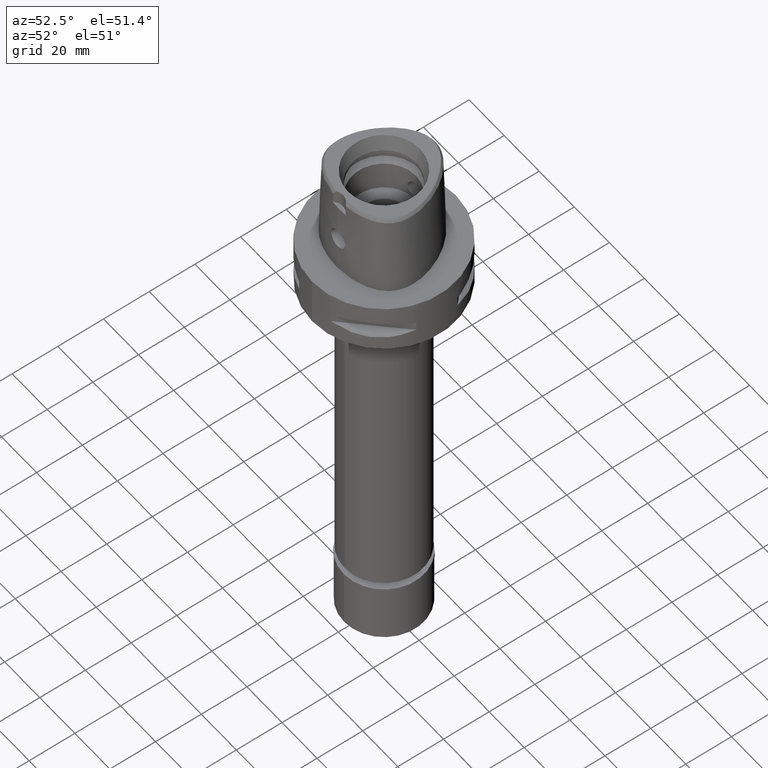
[diagram: clean part render]
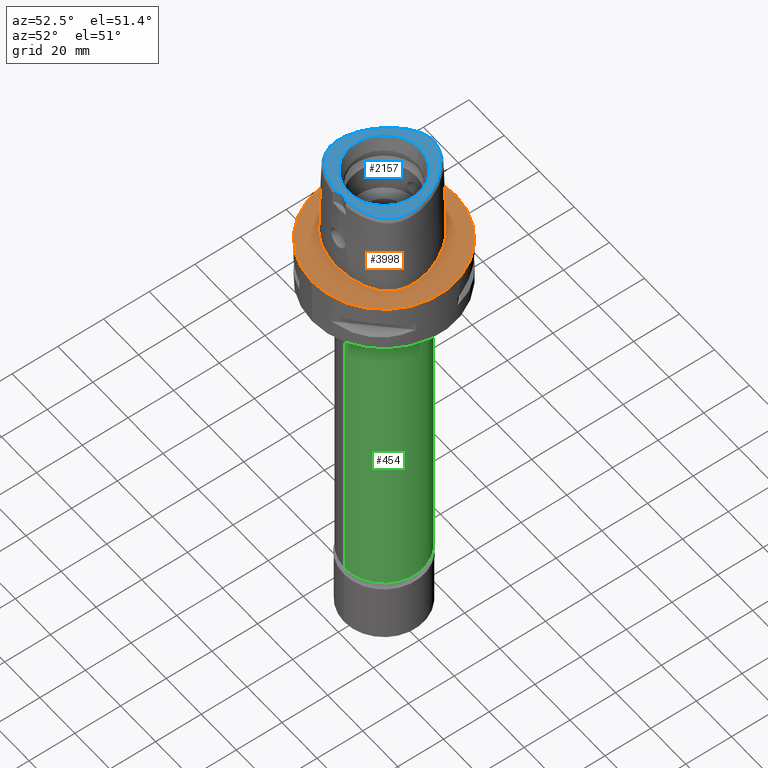
[diagram: same view with three faces highlighted in distinct colors, each labeled with its STEP entity id]
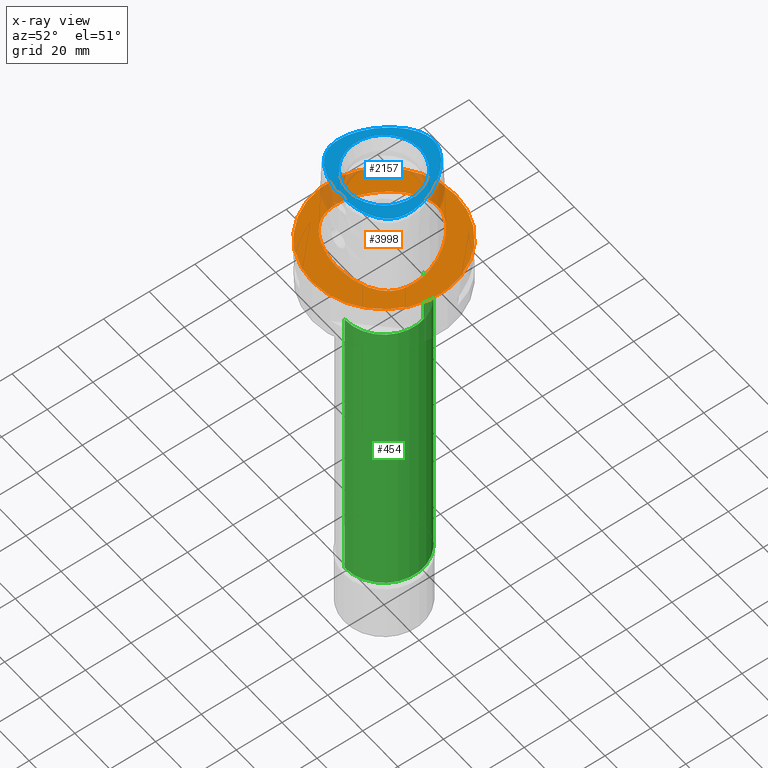
[diagram: x-ray of the same camera — body ghosted, the three highlighted faces saturated]
A machine part, auxiliary view with three faces highlighted in distinct colors.
The next image is the same camera in x-ray (body ghosted, the three faces saturated) — at least one of them is partly hidden behind the body in this view.
Their STEP definitions:

[orange] entity #3998 — the highlighted planar face has unit normal (0, 0, -1).
#34 = CARTESIAN_POINT ( 'NONE',  ( -4.460158730496000764E-12, -20.67499999999999716, 5.410486873340000012E-14 ) ) ;
#37 = CARTESIAN_POINT ( 'NONE',  ( 0.0000000000000000000, 1.340375921666999886E-14, 0.0000000000000000000 ) ) ;
#128 = CARTESIAN_POINT ( 'NONE',  ( -18.06826688526575353, 10.43171875000154714, 3.352082066782058334E-13 ) ) ;
#158 = CARTESIAN_POINT ( 'NONE',  ( -4.460158730496000764E-12, -20.67499999999999716, 5.410486873340000012E-14 ) ) ;
#433 = CARTESIAN_POINT ( 'NONE',  ( 22.24453904861357145, -4.100468750174955268, 1.193656620242363950E-06 ) ) ;
#541 = CARTESIAN_POINT ( 'NONE',  ( -22.24453907854383772, -4.100468750000192841, 3.352082066782058334E-13 ) ) ;
#596 = EDGE_CURVE ( 'NONE', #1937, #3557, #2943, .T. ) ;
#632 = CARTESIAN_POINT ( 'NONE',  ( -4.460158730496000764E-12, -20.67499999999999716, 5.410486873340000012E-14 ) ) ;
#646 = EDGE_LOOP ( 'NONE', ( #1636, #4042 ) ) ;
#683 = CARTESIAN_POINT ( 'NONE',  ( -16.95889172593403060, -15.67838867186882901, 3.352082066782058334E-13 ) ) ;
#695 = CARTESIAN_POINT ( 'NONE',  ( 20.74942738056271097, 4.657187489825333593, 1.193656620242363950E-06 ) ) ;
#799 = CARTESIAN_POINT ( 'NONE',  ( 20.34961795967602072, -11.74885740691958880, 1.193656620242363950E-06 ) ) ;
#922 = VERTEX_POINT ( 'NONE', #1163 ) ;
#945 = DIRECTION ( 'NONE',  ( 0.0000000000000000000, 0.0000000000000000000, -1.000000000000000000 ) ) ;
#1059 = CARTESIAN_POINT ( 'NONE',  ( -20.34961798557038293, -11.74885742186653559, 3.352082066782058334E-13 ) ) ;
#1163 = CARTESIAN_POINT ( 'NONE',  ( 3.368715197014000071E-11, 23.47499999999000053, 5.114427400106999591E-14 ) ) ;
#1197 = CARTESIAN_POINT ( 'NONE',  ( 18.56841062967365374, -14.16937986221643442, 1.193656620242363950E-06 ) ) ;
#1261 = CARTESIAN_POINT ( 'NONE',  ( -21.97832647786615823, -0.2810937500000170730, 3.352082066782058334E-13 ) ) ;
#1283 = CARTESIAN_POINT ( 'NONE',  ( -14.40795638957999358, 15.64093749999941707, 3.352082066782058334E-13 ) ) ;
#1449 = CARTESIAN_POINT ( 'NONE',  ( -19.64947365863480755, -12.82525390624923745, 3.352082066782058334E-13 ) ) ;
#1463 = CARTESIAN_POINT ( 'NONE',  ( 21.97832644831800408, -0.2810937552207187773, 1.193656620242363950E-06 ) ) ;
#1488 = CARTESIAN_POINT ( 'NONE',  ( 20.93173249481360898, -10.60431639409406479, 1.193656620242363950E-06 ) ) ;
#1540 = CARTESIAN_POINT ( 'NONE',  ( 11.23259755702574836, -18.89324215929920214, 1.193656620323679113E-06 ) ) ;
#1548 = DIRECTION ( 'NONE',  ( 0.0000000000000000000, 1.000000000000000000, 0.0000000000000000000 ) ) ;
#1566 = CARTESIAN_POINT ( 'NONE',  ( 10.74572889129124498, 19.17433591452266484, 1.193656620242363950E-06 ) ) ;
#1636 = ORIENTED_EDGE ( 'NONE', *, *, #2073, .F. ) ;
#1671 = CARTESIAN_POINT ( 'NONE',  ( 0.0000000000000000000, -31.50000000000000000, 0.0000000000000000000 ) ) ;
#1843 = CARTESIAN_POINT ( 'NONE',  ( -6.341471019216439409, -20.29812500000378961, 3.352082066782058334E-13 ) ) ;
#1923 = CARTESIAN_POINT ( 'NONE',  ( 18.06826685928987430, 10.43171873500720004, 1.193656620242363950E-06 ) ) ;
#1937 = VERTEX_POINT ( 'NONE', #1671 ) ;
#2073 = EDGE_CURVE ( 'NONE', #3557, #1937, #3910, .T. ) ;
#2209 = CARTESIAN_POINT ( 'NONE',  ( 0.8548392401942415120, 23.47499997016690543, 1.193656620242363950E-06 ) ) ;
#2319 = DIRECTION ( 'NONE',  ( 0.0000000000000000000, 0.0000000000000000000, -1.000000000000000000 ) ) ;
#2328 = EDGE_LOOP ( 'NONE', ( #4378, #3220 ) ) ;
#2350 = DIRECTION ( 'NONE',  ( 0.0000000000000000000, 0.0000000000000000000, -1.000000000000000000 ) ) ;
#2357 = CARTESIAN_POINT ( 'NONE',  ( 0.0000000000000000000, 31.50000000000000000, 0.0000000000000000000 ) ) ;
#2437 = CARTESIAN_POINT ( 'NONE',  ( 0.0000000000000000000, 1.224646799146999965E-14, 0.0000000000000000000 ) ) ;
#2461 = DIRECTION ( 'NONE',  ( 0.0000000000000000000, -1.000000000000000000, 0.0000000000000000000 ) ) ;
#2692 = VERTEX_POINT ( 'NONE', #158 ) ;
#2719 = CARTESIAN_POINT ( 'NONE',  ( 2.564517720822325320, 23.29328122061834705, 1.193656620242363950E-06 ) ) ;
#2805 = CARTESIAN_POINT ( 'NONE',  ( -20.74942740879731318, 4.657187499999997371, 3.352082066782058334E-13 ) ) ;
#2852 = CARTESIAN_POINT ( 'NONE',  ( -22.05732874322076498, -6.847636718749286366, 3.352082066782058334E-13 ) ) ;
#2943 = CIRCLE ( 'NONE', #3969, 31.50000000000000000 ) ;
#3015 = CARTESIAN_POINT ( 'NONE',  ( 2.113823671296158224, -20.67499997015917401, 1.193656620246523940E-06 ) ) ;
#3050 = AXIS2_PLACEMENT_3D ( 'NONE', #4285, #2350, #1548 ) ;
#3065 = CARTESIAN_POINT ( 'NONE',  ( 16.95889170741135032, -15.67838864831582946, 1.193656620242363950E-06 ) ) ;
#3088 = CARTESIAN_POINT ( 'NONE',  ( 7.571159419232511567, 21.31457028665976594, 1.193656620242363950E-06 ) ) ;
#3174 = CARTESIAN_POINT ( 'NONE',  ( 3.368715197014000071E-11, 23.47499999999000053, 5.114427400106999591E-14 ) ) ;
#3220 = ORIENTED_EDGE ( 'NONE', *, *, #3720, .F. ) ;
#3229 = CARTESIAN_POINT ( 'NONE',  ( -0.8548392423002898477, 23.47500000000390941, 3.352082066782058839E-13 ) ) ;
#3273 = CARTESIAN_POINT ( 'NONE',  ( -18.56841065142326741, -14.16937988281731187, 3.352082066782058334E-13 ) ) ;
#3401 = EDGE_CURVE ( 'NONE', #922, #2692, #4491, .T. ) ;
#3460 = CARTESIAN_POINT ( 'NONE',  ( 14.40795636665263402, 15.64093748063660350, 1.193656620323679113E-06 ) ) ;
#3557 = VERTEX_POINT ( 'NONE', #2357 ) ;
#3596 = FACE_BOUND ( 'NONE', #2328, .T. ) ;
#3712 = CARTESIAN_POINT ( 'NONE',  ( -11.23259756727808778, -18.89324218750133255, 3.352082066782058334E-13 ) ) ;
#3720 = EDGE_CURVE ( 'NONE', #2692, #922, #4668, .T. ) ;
#3724 = CARTESIAN_POINT ( 'NONE',  ( 3.368715197014000071E-11, 23.47499999999000053, 5.114427400106999591E-14 ) ) ;
#3781 = CARTESIAN_POINT ( 'NONE',  ( 5.098437006145648098, 22.52602536280721424, 1.193656620242363950E-06 ) ) ;
#3827 = CARTESIAN_POINT ( 'NONE',  ( 21.55524823139614199, -8.996025382093373324, 1.193656620323679113E-06 ) ) ;
#3828 = DIRECTION ( 'NONE',  ( 0.0000000000000000000, -1.000000000000000000, 0.0000000000000000000 ) ) ;
#3910 = CIRCLE ( 'NONE', #3050, 31.50000000000000000 ) ;
#3969 = AXIS2_PLACEMENT_3D ( 'NONE', #37, #2319, #3828 ) ;
#3998 = ADVANCED_FACE ( 'NONE', ( #4347, #3596 ), #4321, .F. ) ;
#4042 = ORIENTED_EDGE ( 'NONE', *, *, #596, .F. ) ;
#4083 = AXIS2_PLACEMENT_3D ( 'NONE', #2437, #945, #2461 ) ;
#4128 = CARTESIAN_POINT ( 'NONE',  ( 14.67337962937919649, -17.21410153648820796, 1.193656620242363950E-06 ) ) ;
#4208 = CARTESIAN_POINT ( 'NONE',  ( 6.341471013909659504, -20.29812497046611597, 1.193656620323679325E-06 ) ) ;
#4285 = CARTESIAN_POINT ( 'NONE',  ( 0.0000000000000000000, 1.340375921666999886E-14, 0.0000000000000000000 ) ) ;
#4319 = CARTESIAN_POINT ( 'NONE',  ( -20.93173252211345314, -10.60431640625211180, 3.352082066782058334E-13 ) ) ;
#4321 = PLANE ( 'NONE',  #4083 ) ;
#4347 = FACE_OUTER_BOUND ( 'NONE', #646, .T. ) ;
#4363 = CARTESIAN_POINT ( 'NONE',  ( -21.55524826009845185, -8.996025390625495888, 3.352082066782058334E-13 ) ) ;
#4378 = ORIENTED_EDGE ( 'NONE', *, *, #3401, .F. ) ;
#4389 = CARTESIAN_POINT ( 'NONE',  ( -5.098437017283574235, 22.52602539062575460, 3.352082066782058334E-13 ) ) ;
#4463 = CARTESIAN_POINT ( 'NONE',  ( -2.113823673074836318, -20.67499999999497717, 3.352082066782058334E-13 ) ) ;
#4491 = B_SPLINE_CURVE_WITH_KNOTS ( 'NONE', 3,
 ( #3174, #3229, #4732, #4389, #4669, #4687, #1283, #128, #2805, #1261, #541, #2852, #4363, #4319, #1059, #1449, #3273, #683, #4828, #3712, #1843, #4463, #632 ),
 .UNSPECIFIED., .F., .F.,
 ( 4, 1, 1, 1, 1, 1, 1, 1, 1, 1, 1, 1, 1, 1, 1, 1, 1, 1, 1, 1, 4 ),
 ( 0.0000000000000000000, 0.04166666666717999679, 0.08333333333381000296, 0.1250000000004000134, 0.1666666666671000052, 0.2500000000002999823, 0.3333333333335999904, 0.4166666666668999985, 0.5000000000001999512, 0.5416666666667999674, 0.5833333333333999837, 0.6250000000001000311, 0.6458333333333000637, 0.6666666666667000474, 0.6875000000000000000, 0.7083333333333000637, 0.7500000000000000000, 0.7916666666666000163, 0.8333333333332000326, 0.9166666666664999852, 1.000000000000000000 ),
 .UNSPECIFIED. ) ;
#4582 = CARTESIAN_POINT ( 'NONE',  ( 19.64947363445602946, -12.82525388868083738, 1.193656620242363950E-06 ) ) ;
#4668 = B_SPLINE_CURVE_WITH_KNOTS ( 'NONE', 3,
 ( #34, #3015, #4208, #1540, #4128, #3065, #1197, #4582, #799, #1488, #3827, #4866, #433, #1463, #695, #1923, #3460, #1566, #3088, #3781, #2719, #2209, #3724 ),
 .UNSPECIFIED., .F., .F.,
 ( 4, 1, 1, 1, 1, 1, 1, 1, 1, 1, 1, 1, 1, 1, 1, 1, 1, 1, 1, 1, 4 ),
 ( 0.0000000000000000000, 0.08333333333336000182, 0.1666666666667000196, 0.2083333333333000081, 0.2500000000000000000, 0.2916666666666000163, 0.3124999999998999689, 0.3333333333332000326, 0.3541666666666000163, 0.3749999999998999689, 0.4166666666666000163, 0.4583333333332000326, 0.4999999999998999689, 0.5833333333331000015, 0.6666666666664999852, 0.7499999999998000488, 0.8333333333329999704, 0.8749999999997000177, 0.9166666666664000651, 0.9583333333329999704, 1.000000000000000000 ),
 .UNSPECIFIED. ) ;
#4669 = CARTESIAN_POINT ( 'NONE',  ( -7.571159434350781758, 21.31457031249806988, 3.352082066782058334E-13 ) ) ;
#4687 = CARTESIAN_POINT ( 'NONE',  ( -10.74572891059653124, 19.17433593749961673, 3.352082066782058334E-13 ) ) ;
#4732 = CARTESIAN_POINT ( 'NONE',  ( -2.564517726953758903, 23.29328125000689198, 3.352082066782058839E-13 ) ) ;
#4828 = CARTESIAN_POINT ( 'NONE',  ( -14.67337964419365015, -17.21410156250055934, 3.352082066782058334E-13 ) ) ;
#4866 = CARTESIAN_POINT ( 'NONE',  ( 22.05732871355553115, -6.847636714486259102, 1.193656620242363950E-06 ) ) ;

[blue] entity #2157 — the highlighted planar face has unit normal (0, 0, 1).
#45 = CARTESIAN_POINT ( 'NONE',  ( -19.28591707036791192, -9.869682450886811509, 37.99999999999483435 ) ) ;
#49 = AXIS2_PLACEMENT_3D ( 'NONE', #1451, #1092, #4118 ) ;
#70 = CARTESIAN_POINT ( 'NONE',  ( -15.24692477332338214, 11.25717358966164383, 38.00000000000520828 ) ) ;
#90 = FACE_OUTER_BOUND ( 'NONE', #1817, .T. ) ;
#92 = CARTESIAN_POINT ( 'NONE',  ( -0.2181979014508672876, 21.68728795389205999, 37.99999999999720757 ) ) ;
#117 = CARTESIAN_POINT ( 'NONE',  ( -8.930096025510461999, -17.65000298921417254, 37.99999999999859313 ) ) ;
#144 = CARTESIAN_POINT ( 'NONE',  ( -19.26324493738621157, 2.868570891456574845, 38.00000000000149925 ) ) ;
#174 = CARTESIAN_POINT ( 'NONE',  ( -7.599370508970233473, -18.01010694911788690, 38.00000000000405009 ) ) ;
#208 = EDGE_CURVE ( 'NONE', #954, #2110, #1103, .T. ) ;
#248 = CARTESIAN_POINT ( 'NONE',  ( 16.88599964843514911, 8.518708218770369101, 37.99999999999589306 ) ) ;
#271 = CARTESIAN_POINT ( 'NONE',  ( 20.15127154947172627, -7.022178451341320127, 38.00000000000220979 ) ) ;
#274 = CIRCLE ( 'NONE', #1144, 15.71487483155999776 ) ;
#275 = CARTESIAN_POINT ( 'NONE',  ( -4.706994425064424448, -18.56721852572461984, 38.00000000000459011 ) ) ;
#299 = CARTESIAN_POINT ( 'NONE',  ( 18.67722910598030239, -11.03372143227709934, 37.99999999999737810 ) ) ;
#333 = VERTEX_POINT ( 'NONE', #904 ) ;
#370 = CARTESIAN_POINT ( 'NONE',  ( -2.682279906006999948, -18.78035848609999903, 38.00000000000000000 ) ) ;
#374 = CARTESIAN_POINT ( 'NONE',  ( 13.33890749495548356, -15.84912955619856589, 37.99999999999639044 ) ) ;
#396 = CARTESIAN_POINT ( 'NONE',  ( 6.196495988003581701, -18.31673538864646034, 37.99999999999781863 ) ) ;
#440 = CARTESIAN_POINT ( 'NONE',  ( -19.54919922642122287, -9.228169790568527375, 38.00000000000543565 ) ) ;
#446 = CARTESIAN_POINT ( 'NONE',  ( 0.0000000000000000000, -15.71487483155999776, 38.00000000000000000 ) ) ;
#464 = CARTESIAN_POINT ( 'NONE',  ( -12.37132652997465598, -16.34104299088113166, 38.00000000000052580 ) ) ;
#485 = CARTESIAN_POINT ( 'NONE',  ( -16.09805956313481090, 9.908742513517157846, 37.99999999999931077 ) ) ;
#511 = CARTESIAN_POINT ( 'NONE',  ( -20.38301517462623025, -3.278344853328179376, 38.00000000000012079 ) ) ;
#531 = DIRECTION ( 'NONE',  ( 0.0000000000000000000, 0.0000000000000000000, 1.000000000000000000 ) ) ;
#551 = ORIENTED_EDGE ( 'NONE', *, *, #2228, .F. ) ;
#612 = CARTESIAN_POINT ( 'NONE',  ( 0.6513209347955739581, 21.67370899611716339, 38.00000000000214584 ) ) ;
#656 = CARTESIAN_POINT ( 'NONE',  ( 4.255661039972422621, 20.86618068830039618, 37.99999999999200639 ) ) ;
#705 = CARTESIAN_POINT ( 'NONE',  ( 1.325020189552758909, 21.61081414409235535, 37.99999999999577938 ) ) ;
#791 = CARTESIAN_POINT ( 'NONE',  ( 10.17751632998442446, -17.24426134458838078, 37.99999999999364064 ) ) ;
#807 = CARTESIAN_POINT ( 'NONE',  ( -7.655222869372202865, 19.09452359226109408, 37.99999999999114664 ) ) ;
#833 = CARTESIAN_POINT ( 'NONE',  ( -19.64434054693245812, 1.520253387635500442, 37.99999999999864286 ) ) ;
#838 = CIRCLE ( 'NONE', #2504, 5.000000000000000888 ) ;
#860 = CARTESIAN_POINT ( 'NONE',  ( -17.45119705493882734, -12.68365517585498914, 38.00000000000108713 ) ) ;
#865 = CARTESIAN_POINT ( 'NONE',  ( -2.682279906006999948, -18.78035848609999903, 38.00000000000000000 ) ) ;
#879 = CARTESIAN_POINT ( 'NONE',  ( -15.00295592773530728, -14.82617991125899159, 38.00000000000067502 ) ) ;
#903 = PLANE ( 'NONE',  #1840 ) ;
#904 = CARTESIAN_POINT ( 'NONE',  ( 0.0000000000000000000, 15.71487483155999776, 38.00000000000000000 ) ) ;
#934 = ORIENTED_EDGE ( 'NONE', *, *, #3427, .F. ) ;
#954 = VERTEX_POINT ( 'NONE', #370 ) ;
#992 = CARTESIAN_POINT ( 'NONE',  ( -3.522896839653944845, -18.70811514173790968, 38.00000000000096634 ) ) ;
#1013 = CARTESIAN_POINT ( 'NONE',  ( 20.40062138795131119, -4.309334958867904852, 37.99999999999789679 ) ) ;
#1034 = CARTESIAN_POINT ( 'NONE',  ( 17.91165267839334518, -12.13575389397989035, 38.00000000000487432 ) ) ;
#1090 = CARTESIAN_POINT ( 'NONE',  ( 13.40430406168616706, 13.76274261013425004, 38.00000000000188294 ) ) ;
#1092 = DIRECTION ( 'NONE',  ( 0.0000000000000000000, 0.0000000000000000000, 1.000000000000000000 ) ) ;
#1103 = B_SPLINE_CURVE_WITH_KNOTS ( 'NONE', 3,
 ( #865, #2385, #992, #275, #3707, #174, #117, #1620, #4636, #464, #2352, #4286, #879, #4589, #1252, #3142, #860, #3835, #2303, #3122, #2729, #45, #440, #1550, #3540, #1936, #4661, #3097, #2326, #511, #3815, #1963, #2777, #833, #144, #1644, #2401, #4215, #3075, #485, #70, #1185, #1595, #3905, #2706, #3489, #2682, #2013, #807, #4610, #3468, #1572, #1207, #4263, #2379, #4234, #1231, #3861, #92, #2754 ),
 .UNSPECIFIED., .F., .F.,
 ( 4, 1, 1, 1, 1, 1, 1, 1, 1, 1, 1, 1, 1, 1, 1, 1, 1, 1, 1, 1, 1, 1, 1, 1, 1, 1, 1, 1, 1, 1, 1, 1, 1, 1, 1, 1, 1, 1, 1, 1, 1, 1, 1, 1, 1, 1, 1, 1, 1, 1, 1, 1, 1, 1, 1, 1, 1, 4 ),
 ( 0.0000000000000000000, 0.005420919554200098744, 0.02318126027639999531, 0.04094160099879995407, 0.05870194172099996166, 0.07646228244330000035, 0.09422262316550000794, 0.1119829638877999356, 0.1297433046099999432, 0.1475036453321999508, 0.1652639860544999895, 0.1830243267768000281, 0.2007846674991000668, 0.2185450082212999634, 0.2363053489436000021, 0.2540656896658000097, 0.2718260303881000484, 0.2895863711103000560, 0.3073467118325999836, 0.3251070525547999912, 0.3428673932771000299, 0.3606277339994000686, 0.3783880747216000762, 0.3961484154438998928, 0.4139087561661000114, 0.4316690968884000501, 0.4494294376106000577, 0.4671897783328999854, 0.4849501190552000240, 0.5027104597774000316, 0.5204708004996999593, 0.5382311412219000779, 0.5559914819442000056, 0.5737518226664000132, 0.5915121633886999408, 0.6092725041108999484, 0.6270328448331999871, 0.6447931855555000258, 0.6625535262777000334, 0.6803138669999999610, 0.6980742077221999686, 0.7158345484445000073, 0.7335948891667000149, 0.7513552298890000536, 0.7691155706112000612, 0.7868759113336000199, 0.8046362520558000275, 0.8223965927780999552, 0.8401569335002999628, 0.8579172742224999704, 0.8756776149448000091, 0.8934379556670000166, 0.9111982963893099363, 0.9289586371115700070, 0.9467189778338299666, 0.9644793185560800453, 0.9822396592783400049, 1.000000000000000000 ),
 .UNSPECIFIED. ) ;
#1113 = CARTESIAN_POINT ( 'NONE',  ( 11.46587147800330264, 15.92717600803369571, 38.00000000000179767 ) ) ;
#1144 = AXIS2_PLACEMENT_3D ( 'NONE', #4320, #2832, #3572 ) ;
#1185 = CARTESIAN_POINT ( 'NONE',  ( -14.34402387966072290, 12.54761970513193248, 37.99999999999836575 ) ) ;
#1207 = CARTESIAN_POINT ( 'NONE',  ( -4.254559144977499763, 20.86660163697509063, 37.99999999999418065 ) ) ;
#1231 = CARTESIAN_POINT ( 'NONE',  ( -1.323674540694302681, 21.61098849315584403, 38.00000000000310507 ) ) ;
#1252 = CARTESIAN_POINT ( 'NONE',  ( -16.36032397154105311, -13.76458520344708703, 38.00000000000432010 ) ) ;
#1373 = CARTESIAN_POINT ( 'NONE',  ( 0.2185816947241600861, 21.68728795389870356, 38.00000000000086686 ) ) ;
#1399 = CARTESIAN_POINT ( 'NONE',  ( 19.28677546797404574, -9.867757137506387721, 37.99999999999891998 ) ) ;
#1421 = CARTESIAN_POINT ( 'NONE',  ( 7.655962789343554675, 19.09402979099542819, 38.00000000000034106 ) ) ;
#1451 = CARTESIAN_POINT ( 'NONE',  ( 0.0000000000000000000, 0.0000000000000000000, 38.00000000000000000 ) ) ;
#1480 = CARTESIAN_POINT ( 'NONE',  ( 0.0000000000000000000, -23.00000000000000000, 38.00000000000000000 ) ) ;
#1501 = CARTESIAN_POINT ( 'NONE',  ( 11.32341394162538606, -16.80569392800572714, 37.99999999999089795 ) ) ;
#1550 = CARTESIAN_POINT ( 'NONE',  ( -19.78262210840451374, -8.543146992552335561, 38.00000000000091660 ) ) ;
#1572 = CARTESIAN_POINT ( 'NONE',  ( -5.058220461389316469, 20.53445508814788312, 37.99999999999688782 ) ) ;
#1575 = CARTESIAN_POINT ( 'NONE',  ( 4.715576077242084274, -18.56597918135451408, 37.99999999999212719 ) ) ;
#1592 = FACE_BOUND ( 'NONE', #3520, .T. ) ;
#1595 = CARTESIAN_POINT ( 'NONE',  ( -13.40435640711702270, 13.76268382997292505, 37.99999999999547384 ) ) ;
#1607 = ORIENTED_EDGE ( 'NONE', *, *, #4079, .F. ) ;
#1620 = CARTESIAN_POINT ( 'NONE',  ( -10.17136073855298939, -17.24644253470536981, 38.00000000000328271 ) ) ;
#1644 = CARTESIAN_POINT ( 'NONE',  ( -18.79649882725144394, 4.256255933891412546, 37.99999999999247535 ) ) ;
#1663 = VERTEX_POINT ( 'NONE', #446 ) ;
#1699 = CIRCLE ( 'NONE', #49, 15.71487483155999776 ) ;
#1746 = CARTESIAN_POINT ( 'NONE',  ( 18.24247239569379531, 5.672548708072002732, 38.00000000000096634 ) ) ;
#1768 = CARTESIAN_POINT ( 'NONE',  ( 19.78323211892953992, -8.541156231035349933, 37.99999999999433697 ) ) ;
#1792 = CARTESIAN_POINT ( 'NONE',  ( 16.36283630828138058, -13.76236604535071884, 37.99999999999991473 ) ) ;
#1817 = EDGE_LOOP ( 'NONE', ( #934, #2469, #1607 ) ) ;
#1818 = CARTESIAN_POINT ( 'NONE',  ( -3.470663397246000156E-11, 21.68728795390000030, 38.00000000000000000 ) ) ;
#1840 = AXIS2_PLACEMENT_3D ( 'NONE', #2424, #531, #2036 ) ;
#1936 = CARTESIAN_POINT ( 'NONE',  ( -20.15090095364576328, -7.024227649787187389, 37.99999999999991473 ) ) ;
#1942 = CARTESIAN_POINT ( 'NONE',  ( 12.37622418509669586, -16.33871033285930352, 37.99999999999399591 ) ) ;
#1963 = CARTESIAN_POINT ( 'NONE',  ( -20.16012968311539311, -1.009698174524393810, 38.00000000000053291 ) ) ;
#1967 = CARTESIAN_POINT ( 'NONE',  ( 2.682287482605000051, -18.78036330228999873, 38.00000000000000000 ) ) ;
#2013 = CARTESIAN_POINT ( 'NONE',  ( -8.578220530113478404, 18.44656747109246098, 38.00000000000508749 ) ) ;
#2036 = DIRECTION ( 'NONE',  ( 1.000000000000000000, 0.0000000000000000000, 0.0000000000000000000 ) ) ;
#2110 = VERTEX_POINT ( 'NONE', #3859 ) ;
#2126 = CARTESIAN_POINT ( 'NONE',  ( 10.48999540691375820, 16.86597469869670007, 37.99999999999808153 ) ) ;
#2157 = ADVANCED_FACE ( 'NONE', ( #90, #1592 ), #903, .T. ) ;
#2173 = CARTESIAN_POINT ( 'NONE',  ( 16.93855157777779752, -13.22377441789364561, 37.99999999999391065 ) ) ;
#2198 = CARTESIAN_POINT ( 'NONE',  ( 2.736932690727032380, 21.34527940056690909, 37.99999999999818812 ) ) ;
#2219 = CARTESIAN_POINT ( 'NONE',  ( 20.15982952131851746, -1.007721426051621849, 38.00000000000196820 ) ) ;
#2228 = EDGE_CURVE ( 'NONE', #1663, #333, #274, .T. ) ;
#2303 = CARTESIAN_POINT ( 'NONE',  ( -18.31748213707817996, -11.58791794387318674, 37.99999999999613465 ) ) ;
#2326 = CARTESIAN_POINT ( 'NONE',  ( -20.40060226222783157, -4.311417605381531182, 38.00000000000313349 ) ) ;
#2352 = CARTESIAN_POINT ( 'NONE',  ( -13.33457781970401435, -15.85148397417686006, 38.00000000000251532 ) ) ;
#2379 = CARTESIAN_POINT ( 'NONE',  ( -2.735698246183459137, 21.34559102902342431, 38.00000000000103029 ) ) ;
#2385 = CARTESIAN_POINT ( 'NONE',  ( -2.841965291530428761, -18.76757795571789345, 37.99999999999899103 ) ) ;
#2401 = CARTESIAN_POINT ( 'NONE',  ( -18.24302769442598304, 5.671232572958770923, 37.99999999999726441 ) ) ;
#2424 = CARTESIAN_POINT ( 'NONE',  ( 0.0000000000000000000, 0.0000000000000000000, 38.00000000000000000 ) ) ;
#2469 = ORIENTED_EDGE ( 'NONE', *, *, #208, .F. ) ;
#2479 = B_SPLINE_CURVE_WITH_KNOTS ( 'NONE', 3,
 ( #1818, #1373, #612, #705, #4884, #2198, #3737, #656, #3342, #2526, #4090, #1421, #3002, #4515, #2126, #1113, #2948, #1090, #2624, #3297, #4853, #248, #2899, #1746, #2973, #2579, #4490, #3687, #2219, #4779, #4417, #1013, #4036, #3663, #271, #4439, #1768, #4807, #1399, #2551, #299, #2921, #1034, #4060, #2173, #1792, #3318, #2733, #4218, #374, #1942, #1501, #791, #3471, #3763, #396, #1575, #4568, #3794, #1967 ),
 .UNSPECIFIED., .F., .F.,
 ( 4, 1, 1, 1, 1, 1, 1, 1, 1, 1, 1, 1, 1, 1, 1, 1, 1, 1, 1, 1, 1, 1, 1, 1, 1, 1, 1, 1, 1, 1, 1, 1, 1, 1, 1, 1, 1, 1, 1, 1, 1, 1, 1, 1, 1, 1, 1, 1, 1, 1, 1, 1, 1, 1, 1, 1, 1, 4 ),
 ( 0.0000000000000000000, 0.01775854187129999318, 0.03551708374169992855, 0.05327562561200005486, 0.07103416748239999023, 0.08879270935270000553, 0.1065512512231000519, 0.1243097930933999562, 0.1420683349638000026, 0.1598268768341000179, 0.1775854187044000332, 0.1953439605747999686, 0.2131025024450999839, 0.2308610443155000302, 0.2486195861857999345, 0.2663781280563000120, 0.2841366699266000273, 0.3018952117970000737, 0.3196537536672999780, 0.3374122955377000244, 0.3551708374080000397, 0.3729293792782999439, 0.3906879211486999903, 0.4084464630190000056, 0.4262050048894000520, 0.4439635467596999563, 0.4617220886301000027, 0.4794806305004000180, 0.4972391723707999533, 0.5149977142410999686, 0.5327562561113999839, 0.5505147979818000303, 0.5682733398521000456, 0.5860318817224999810, 0.6037904235927999963, 0.6215489654632000427, 0.6393075073334999470, 0.6570660492038999934, 0.6748245910742000087, 0.6925831329445000240, 0.7103416748149000703, 0.7281002166851999746, 0.7458587585556000210, 0.7636173004259000363, 0.7813758422962999717, 0.7991343841665999870, 0.8168929260370000334, 0.8346514679073000487, 0.8524100097776999840, 0.8701685516479999993, 0.8879270935183000146, 0.9056856353886799660, 0.9234441772589799813, 0.9412027191293600437, 0.9589612609997000270, 0.9767198028700500023, 0.9944783447403919840, 1.000000000000000000 ),
 .UNSPECIFIED. ) ;
#2504 = AXIS2_PLACEMENT_3D ( 'NONE', #1480, #2901, #3391 ) ;
#2526 = CARTESIAN_POINT ( 'NONE',  ( 5.894487344450176636, 20.13186406532045325, 37.99999999999348432 ) ) ;
#2551 = CARTESIAN_POINT ( 'NONE',  ( 18.99619228226483969, -10.46780014453182694, 37.99999999999952394 ) ) ;
#2566 = VERTEX_POINT ( 'NONE', #2855 ) ;
#2579 = CARTESIAN_POINT ( 'NONE',  ( 19.26272899268480643, 2.870227893750008086, 37.99999999999417355 ) ) ;
#2624 = CARTESIAN_POINT ( 'NONE',  ( 14.34383722811443285, 12.54786717290336462, 37.99999999999153033 ) ) ;
#2682 = CARTESIAN_POINT ( 'NONE',  ( -9.524337278001715035, 17.70558492631310799, 37.99999999999835865 ) ) ;
#2706 = CARTESIAN_POINT ( 'NONE',  ( -11.46564124494610049, 15.92741340513818393, 37.99999999999482014 ) ) ;
#2729 = CARTESIAN_POINT ( 'NONE',  ( -18.99520880203784756, -10.46968343926593370, 38.00000000000099476 ) ) ;
#2733 = CARTESIAN_POINT ( 'NONE',  ( 15.00628712263202935, -14.82385870794665550, 37.99999999999094058 ) ) ;
#2754 = CARTESIAN_POINT ( 'NONE',  ( -3.470663397246000156E-11, 21.68728795390000030, 38.00000000000000000 ) ) ;
#2777 = CARTESIAN_POINT ( 'NONE',  ( -19.94188961899460466, 0.2242544969876061889, 38.00000000000434852 ) ) ;
#2832 = DIRECTION ( 'NONE',  ( 0.0000000000000000000, 0.0000000000000000000, 1.000000000000000000 ) ) ;
#2855 = CARTESIAN_POINT ( 'NONE',  ( 2.682287482605000051, -18.78036330228999873, 38.00000000000000000 ) ) ;
#2899 = CARTESIAN_POINT ( 'NONE',  ( 17.60373714027829450, 7.099883643193199312, 37.99999999999766942 ) ) ;
#2901 = DIRECTION ( 'NONE',  ( 0.0000000000000000000, 0.0000000000000000000, 1.000000000000000000 ) ) ;
#2921 = CARTESIAN_POINT ( 'NONE',  ( 18.31883910943310667, -11.58595831187872882, 37.99999999999354827 ) ) ;
#2948 = CARTESIAN_POINT ( 'NONE',  ( 12.44125753246545152, 14.89118158853746010, 37.99999999999699440 ) ) ;
#2973 = CARTESIAN_POINT ( 'NONE',  ( 18.79595068775903854, 4.257753965101973570, 37.99999999999966604 ) ) ;
#3002 = CARTESIAN_POINT ( 'NONE',  ( 8.578848111816752109, 18.44609846599373171, 37.99999999999248246 ) ) ;
#3075 = CARTESIAN_POINT ( 'NONE',  ( -16.88647904405215527, 8.517821442302411228, 38.00000000000201794 ) ) ;
#3097 = CARTESIAN_POINT ( 'NONE',  ( -20.36398648679168488, -5.278470727084934921, 37.99999999999609912 ) ) ;
#3122 = CARTESIAN_POINT ( 'NONE',  ( -18.67608643721819206, -11.03561202290967103, 37.99999999999689493 ) ) ;
#3142 = CARTESIAN_POINT ( 'NONE',  ( -16.93638123745571633, -13.22593246128314703, 37.99999999999826628 ) ) ;
#3297 = CARTESIAN_POINT ( 'NONE',  ( 15.24661770199110222, 11.25762885478229514, 37.99999999999850786 ) ) ;
#3304 = ORIENTED_EDGE ( 'NONE', *, *, #4154, .F. ) ;
#3318 = CARTESIAN_POINT ( 'NONE',  ( 15.72078707640234896, -14.29615620309571611, 37.99999999999591438 ) ) ;
#3342 = CARTESIAN_POINT ( 'NONE',  ( 5.059249257020531410, 20.53399274679486908, 37.99999999999289457 ) ) ;
#3391 = DIRECTION ( 'NONE',  ( 0.0000000000000000000, 1.000000000000000000, 0.0000000000000000000 ) ) ;
#3427 = EDGE_CURVE ( 'NONE', #2110, #2566, #2479, .T. ) ;
#3468 = CARTESIAN_POINT ( 'NONE',  ( -5.893543501601303802, 20.13235399351929900, 38.00000000000481748 ) ) ;
#3471 = CARTESIAN_POINT ( 'NONE',  ( 8.936919536467677005, -17.64796721715626404, 37.99999999999576517 ) ) ;
#3489 = CARTESIAN_POINT ( 'NONE',  ( -10.48962422759696267, 16.86631853279033422, 38.00000000000645883 ) ) ;
#3520 = EDGE_LOOP ( 'NONE', ( #551, #3304 ) ) ;
#3540 = CARTESIAN_POINT ( 'NONE',  ( -19.98419490691913225, -7.809898894995639829, 38.00000000000277112 ) ) ;
#3572 = DIRECTION ( 'NONE',  ( 0.0000000000000000000, -1.000000000000000000, 0.0000000000000000000 ) ) ;
#3663 = CARTESIAN_POINT ( 'NONE',  ( 20.27923816685810365, -6.179850483268539030, 38.00000000000139977 ) ) ;
#3687 = CARTESIAN_POINT ( 'NONE',  ( 19.94150023628167290, 0.2261566111945528534, 38.00000000000086686 ) ) ;
#3707 = CARTESIAN_POINT ( 'NONE',  ( -6.188376196366484727, -18.31830638231786068, 37.99999999999891287 ) ) ;
#3737 = CARTESIAN_POINT ( 'NONE',  ( 3.482188079159784788, 21.13472718027443520, 37.99999999999544542 ) ) ;
#3763 = CARTESIAN_POINT ( 'NONE',  ( 7.606839420237792915, -18.00827588386390943, 37.99999999999756284 ) ) ;
#3794 = CARTESIAN_POINT ( 'NONE',  ( 2.845098933833337007, -18.76733062685881848, 37.99999999999795364 ) ) ;
#3815 = CARTESIAN_POINT ( 'NONE',  ( -20.30498420086601286, -2.177378896257983865, 38.00000000000441958 ) ) ;
#3835 = CARTESIAN_POINT ( 'NONE',  ( -17.91005512243721043, -12.13778127739366930, 37.99999999999803890 ) ) ;
#3859 = CARTESIAN_POINT ( 'NONE',  ( -3.470663397246000156E-11, 21.68728795390000030, 38.00000000000000000 ) ) ;
#3861 = CARTESIAN_POINT ( 'NONE',  ( -0.6498990081534457008, 21.67378274707939312, 37.99999999999633360 ) ) ;
#3905 = CARTESIAN_POINT ( 'NONE',  ( -12.44116897271316269, 14.89128547409552361, 37.99999999999999289 ) ) ;
#4036 = CARTESIAN_POINT ( 'NONE',  ( 20.36412151361310308, -5.276385427453759824, 37.99999999999965894 ) ) ;
#4060 = CARTESIAN_POINT ( 'NONE',  ( 17.45306278053674731, -12.68156296993345755, 38.00000000000105871 ) ) ;
#4079 = EDGE_CURVE ( 'NONE', #2566, #954, #838, .T. ) ;
#4090 = CARTESIAN_POINT ( 'NONE',  ( 6.760281394351389750, 19.65404668909805963, 37.99999999999458566 ) ) ;
#4118 = DIRECTION ( 'NONE',  ( 0.0000000000000000000, 1.000000000000000000, 0.0000000000000000000 ) ) ;
#4154 = EDGE_CURVE ( 'NONE', #333, #1663, #1699, .T. ) ;
#4215 = CARTESIAN_POINT ( 'NONE',  ( -17.60426951086934366, 7.098774535281438425, 37.99999999999714362 ) ) ;
#4218 = CARTESIAN_POINT ( 'NONE',  ( 14.21382211799224571, -15.34284287400044633, 37.99999999999267430 ) ) ;
#4234 = CARTESIAN_POINT ( 'NONE',  ( -2.017025177696244675, 21.50280829368303159, 37.99999999999902656 ) ) ;
#4263 = CARTESIAN_POINT ( 'NONE',  ( -3.481017203589004350, 21.13509756881591883, 37.99999999999729283 ) ) ;
#4286 = CARTESIAN_POINT ( 'NONE',  ( -14.21001600787392505, -15.34519100085782561, 37.99999999999976552 ) ) ;
#4320 = CARTESIAN_POINT ( 'NONE',  ( 0.0000000000000000000, 0.0000000000000000000, 38.00000000000000000 ) ) ;
#4417 = CARTESIAN_POINT ( 'NONE',  ( 20.38292172607778951, -3.276278498261712357, 37.99999999999472067 ) ) ;
#4439 = CARTESIAN_POINT ( 'NONE',  ( 19.98468477322714421, -7.807876343103622219, 37.99999999999718625 ) ) ;
#4490 = CARTESIAN_POINT ( 'NONE',  ( 19.64387775268362546, 1.522048414457689791, 37.99999999999546674 ) ) ;
#4515 = CARTESIAN_POINT ( 'NONE',  ( 9.524842839488607993, 17.70516372194562038, 38.00000000000490985 ) ) ;
#4568 = CARTESIAN_POINT ( 'NONE',  ( 3.529311563348572101, -18.70747079909934030, 37.99999999999587175 ) ) ;
#4589 = CARTESIAN_POINT ( 'NONE',  ( -15.71788912669417826, -14.29843101565890251, 37.99999999999764810 ) ) ;
#4610 = CARTESIAN_POINT ( 'NONE',  ( -6.759433772717192923, 19.65454812513024407, 37.99999999999575806 ) ) ;
#4636 = CARTESIAN_POINT ( 'NONE',  ( -11.31790883121372993, -16.80796958613225200, 37.99999999999590017 ) ) ;
#4661 = CARTESIAN_POINT ( 'NONE',  ( -20.27898581532587485, -6.181921586190177287, 38.00000000000004974 ) ) ;
#4779 = CARTESIAN_POINT ( 'NONE',  ( 20.30478359882036798, -2.175347700950709839, 37.99999999999804601 ) ) ;
#4807 = CARTESIAN_POINT ( 'NONE',  ( 19.54993126781734247, -9.226212439886108285, 37.99999999999833022 ) ) ;
#4853 = CARTESIAN_POINT ( 'NONE',  ( 16.09765529146674723, 9.909410920132170730, 37.99999999999410250 ) ) ;
#4884 = CARTESIAN_POINT ( 'NONE',  ( 2.018320379028544664, 21.50256508436822145, 37.99999999999897682 ) ) ;

[green] entity #454 — the highlighted cylindrical surface (partial cylindrical patch) has radius 17.25 mm, axis along (0, 0, -1).
#186 = CIRCLE ( 'NONE', #4310, 17.25000000000000000 ) ;
#340 = DIRECTION ( 'NONE',  ( 0.0000000000000000000, 1.000000000000000000, 0.0000000000000000000 ) ) ;
#454 = ADVANCED_FACE ( 'NONE', ( #2541 ), #4821, .T. ) ;
#463 = LINE ( 'NONE', #1571, #2491 ) ;
#526 = ORIENTED_EDGE ( 'NONE', *, *, #1047, .T. ) ;
#597 = EDGE_LOOP ( 'NONE', ( #526, #3673, #2765, #2992 ) ) ;
#630 = CARTESIAN_POINT ( 'NONE',  ( 0.0000000000000000000, -17.25000000000000000, -170.1999999999999886 ) ) ;
#816 = VERTEX_POINT ( 'NONE', #1805 ) ;
#970 = DIRECTION ( 'NONE',  ( 0.0000000000000000000, 0.0000000000000000000, -1.000000000000000000 ) ) ;
#1038 = AXIS2_PLACEMENT_3D ( 'NONE', #4455, #1490, #2567 ) ;
#1047 = EDGE_CURVE ( 'NONE', #816, #1784, #3113, .T. ) ;
#1432 = EDGE_CURVE ( 'NONE', #1952, #3263, #186, .T. ) ;
#1490 = DIRECTION ( 'NONE',  ( 0.0000000000000000000, 0.0000000000000000000, -1.000000000000000000 ) ) ;
#1571 = CARTESIAN_POINT ( 'NONE',  ( 0.0000000000000000000, -17.25000000000000000, -32.00000000000000000 ) ) ;
#1784 = VERTEX_POINT ( 'NONE', #4774 ) ;
#1805 = CARTESIAN_POINT ( 'NONE',  ( 0.0000000000000000000, 17.25000000000000000, -32.00000000000000000 ) ) ;
#1891 = DIRECTION ( 'NONE',  ( 0.0000000000000000000, 0.0000000000000000000, 1.000000000000000000 ) ) ;
#1952 = VERTEX_POINT ( 'NONE', #630 ) ;
#2139 = EDGE_CURVE ( 'NONE', #1784, #1952, #463, .T. ) ;
#2156 = AXIS2_PLACEMENT_3D ( 'NONE', #2600, #2216, #340 ) ;
#2216 = DIRECTION ( 'NONE',  ( 0.0000000000000000000, 0.0000000000000000000, -1.000000000000000000 ) ) ;
#2491 = VECTOR ( 'NONE', #4660, 1000.000000000000000 ) ;
#2541 = FACE_OUTER_BOUND ( 'NONE', #597, .T. ) ;
#2567 = DIRECTION ( 'NONE',  ( 0.0000000000000000000, -1.000000000000000000, 0.0000000000000000000 ) ) ;
#2572 = EDGE_CURVE ( 'NONE', #816, #3263, #4672, .T. ) ;
#2600 = CARTESIAN_POINT ( 'NONE',  ( 0.0000000000000000000, 0.0000000000000000000, -32.00000000000000000 ) ) ;
#2765 = ORIENTED_EDGE ( 'NONE', *, *, #1432, .T. ) ;
#2992 = ORIENTED_EDGE ( 'NONE', *, *, #2572, .F. ) ;
#3113 = CIRCLE ( 'NONE', #2156, 17.25000000000000000 ) ;
#3263 = VERTEX_POINT ( 'NONE', #4345 ) ;
#3390 = CARTESIAN_POINT ( 'NONE',  ( 0.0000000000000000000, 1.340375921666999886E-14, -170.1999999999999886 ) ) ;
#3673 = ORIENTED_EDGE ( 'NONE', *, *, #2139, .T. ) ;
#4310 = AXIS2_PLACEMENT_3D ( 'NONE', #3390, #1891, #4492 ) ;
#4345 = CARTESIAN_POINT ( 'NONE',  ( 0.0000000000000000000, 17.25000000000000000, -170.1999999999999886 ) ) ;
#4368 = CARTESIAN_POINT ( 'NONE',  ( 0.0000000000000000000, 17.25000000000000000, -32.00000000000000000 ) ) ;
#4455 = CARTESIAN_POINT ( 'NONE',  ( 0.0000000000000000000, 1.340375921666999886E-14, 9.449999999999999289 ) ) ;
#4492 = DIRECTION ( 'NONE',  ( 0.0000000000000000000, -1.000000000000000000, 0.0000000000000000000 ) ) ;
#4660 = DIRECTION ( 'NONE',  ( 0.0000000000000000000, 0.0000000000000000000, -1.000000000000000000 ) ) ;
#4672 = LINE ( 'NONE', #4368, #4862 ) ;
#4774 = CARTESIAN_POINT ( 'NONE',  ( 0.0000000000000000000, -17.25000000000000000, -32.00000000000000000 ) ) ;
#4821 = CYLINDRICAL_SURFACE ( 'NONE', #1038, 17.25000000000000000 ) ;
#4862 = VECTOR ( 'NONE', #970, 1000.000000000000000 ) ;